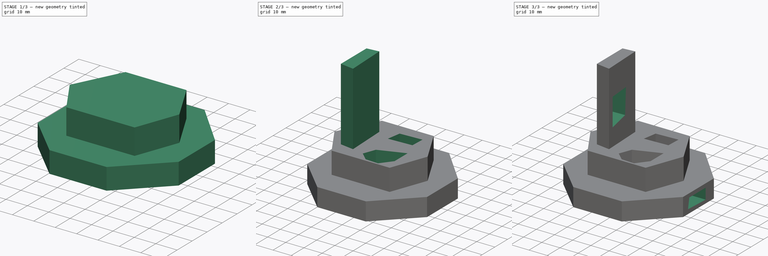
[diagram: build sequence overview — one tinted view per stage of 3, left to right]
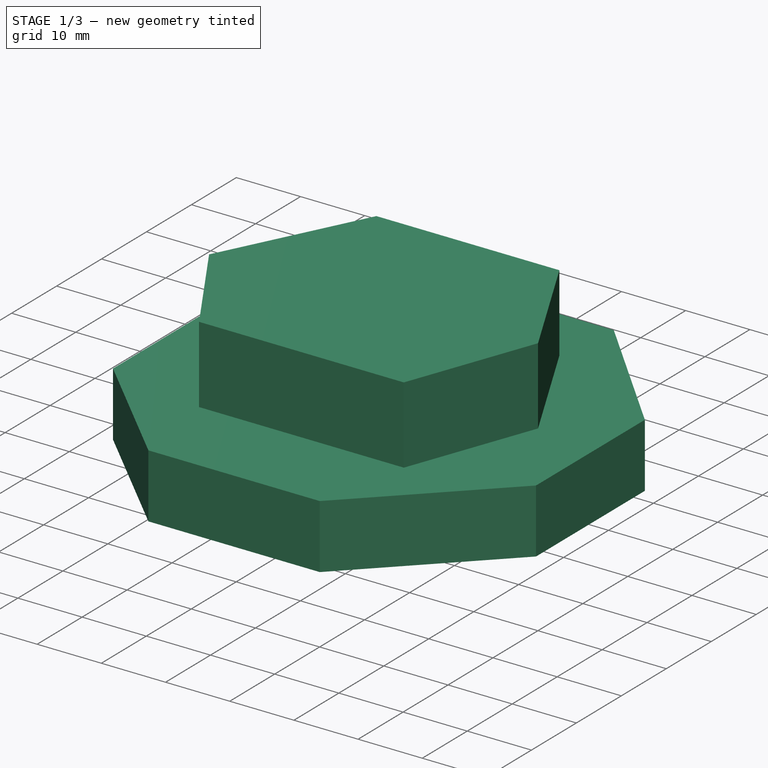
[diagram: stage 1 of 3 — iso view after this stage's code; geometry added in this stage tinted green]
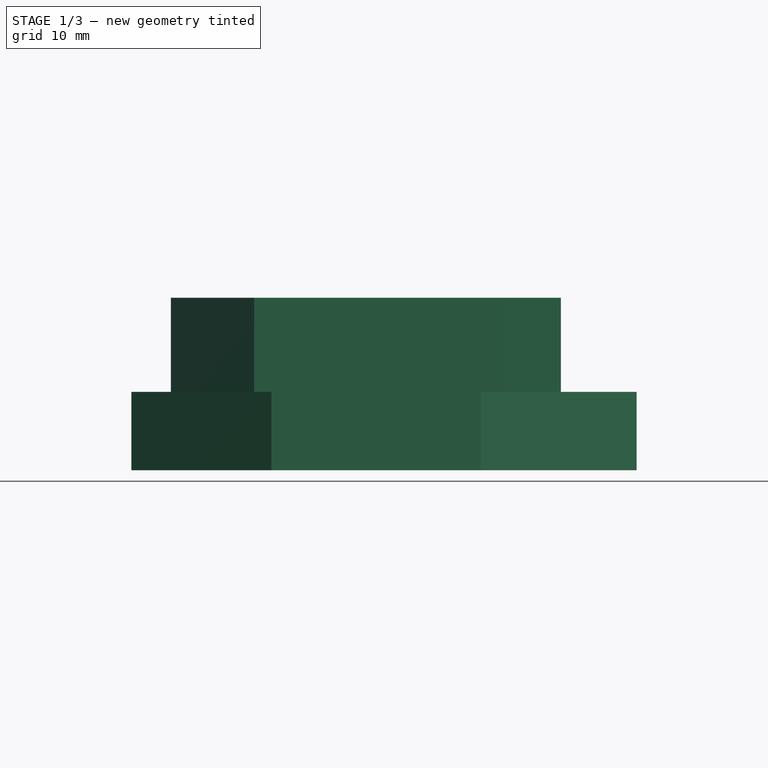
[diagram: stage 1 of 3 — front view after this stage's code; geometry added in this stage tinted green]
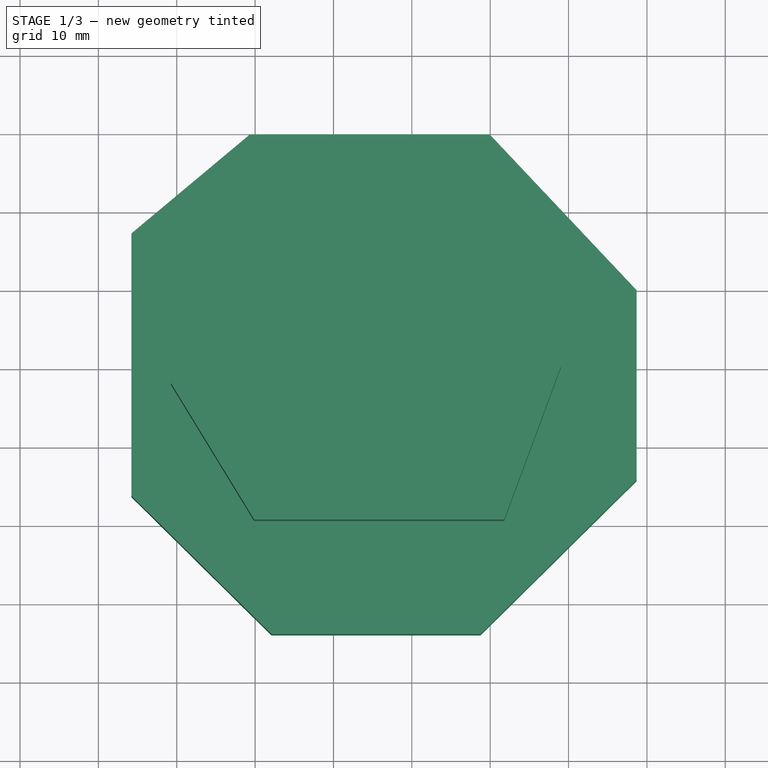
[diagram: stage 1 of 3 — top view after this stage's code; geometry added in this stage tinted green]
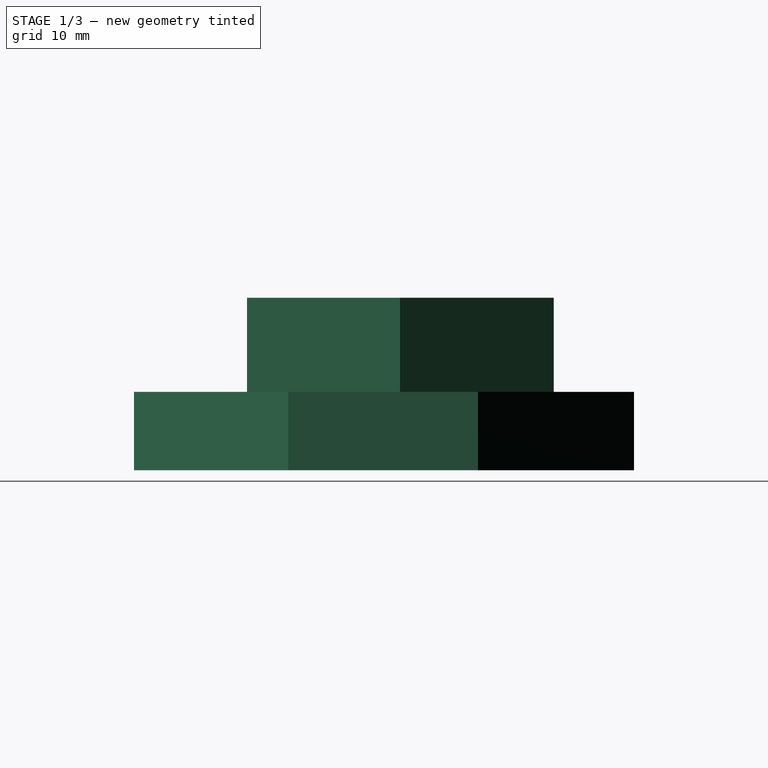
[diagram: stage 1 of 3 — right view after this stage's code; geometry added in this stage tinted green]
FCSTD DOCUMENT  (FreeCAD 0.21R33694 (Git))
Label: OJT1_T017_P01_figura_random
License: All rights reserved
LicenseURL: http://en.wikipedia.org/wiki/All_rights_reserved
objects: Sketcher::SketchObject×8, PartDesign::Pocket×4, PartDesign::Pad×3, PartDesign::Body×1
note: 23 computed .brp shape members not serialized (recipe doc carries the construction recipe); baked Part::Feature solids carry a one-line shape summary decoded from their .brp

FEATURE [Sketcher::SketchObject] Sketch
  FullyConstrained = false
  MapMode = 5
  Support = -> [XY_Plane]
  sketch-geometry (8):
    g0: LineSegment StartX=-10.6335 StartY=29.8643 StartZ=0 EndX=19.9095 EndY=29.8643 EndZ=0
    g1: LineSegment StartX=19.9095 StartY=29.8643 StartZ=0 EndX=38.6878 EndY=9.95475 EndZ=0
    g2: LineSegment StartX=38.6878 StartY=9.95475 StartZ=0 EndX=38.6878 EndY=-14.2534 EndZ=0
    g3: LineSegment StartX=38.6878 StartY=-14.2534 StartZ=0 EndX=18.7783 EndY=-33.9366 EndZ=0
    g4: LineSegment StartX=18.7783 StartY=-33.9366 StartZ=0 EndX=-7.91855 EndY=-33.9366 EndZ=0
    g5: LineSegment StartX=-7.91855 StartY=-33.9366 StartZ=0 EndX=-25.7919 EndY=-16.2896 EndZ=0
    g6: LineSegment StartX=-25.7919 StartY=-16.2896 StartZ=0 EndX=-25.7919 EndY=17.1946 EndZ=0
    g7: LineSegment StartX=-25.7919 StartY=17.1946 StartZ=0 EndX=-10.6335 EndY=29.8643 EndZ=0
  constraints (12):
    c: Horizontal(g0)
    c: Coincident(g0,g1)
    c: Coincident(g1,g2)
    c: Vertical(g2)
    c: Coincident(g2,g3)
    c: Coincident(g3,g4)
    c: Horizontal(g4)
    c: Coincident(g4,g5)
    c: Coincident(g5,g6)
    c: Vertical(g6)
    c: Coincident(g6,g7)
    c: Coincident(g7,g0)
FEATURE [PartDesign::Pad] Pad
  Direction = (0,0,1)
  Length = 10
  Length2 = 10
  Profile = -> Sketch
  ReferenceAxis = -> Sketch [N_Axis]
  Type = 0
FEATURE [Sketcher::SketchObject] Sketch002
  FullyConstrained = false
  MapMode = 5
  Placement = pos=(0,0,10) rot=(0,0,1;0rad)
  Support = -> [Pad]
  sketch-geometry (6):
    g0: LineSegment StartX=-9.89622 StartY=19.6214 StartZ=0 EndX=18.6106 EndY=19.6214 EndZ=0
    g1: LineSegment StartX=18.6106 StartY=19.6214 StartZ=0 EndX=29.0178 EndY=0 EndZ=0
    g2: LineSegment StartX=29.0178 StartY=0 StartZ=0 EndX=21.778 EndY=-19.5188 EndZ=0
    g3: LineSegment StartX=21.778 StartY=-19.5188 StartZ=0 EndX=-10.1225 EndY=-19.5188 EndZ=0
    g4: LineSegment StartX=-10.1225 StartY=-19.5188 StartZ=0 EndX=-20.7559 EndY=-2.09803 EndZ=0
    g5: LineSegment StartX=-20.7559 StartY=-2.09803 StartZ=0 EndX=-9.89622 EndY=19.6214 EndZ=0
  constraints (8):
    c: Horizontal(g0)
    c: Coincident(g0,g1)
    c: PointOnObject(g1,g-1)
    c: Coincident(g1,g2)
    c: Coincident(g2,g3)
    c: Horizontal(g3)
    c: Coincident(g3,g4)
    c: Coincident(g4,g5)
FEATURE [PartDesign::Pad] Pad001
  BaseFeature = -> Pad
  Direction = (0,0,1)
  Length = 12
  Length2 = 10
  Profile = -> Sketch002
  ReferenceAxis = -> Sketch002 [N_Axis]
  Type = 0
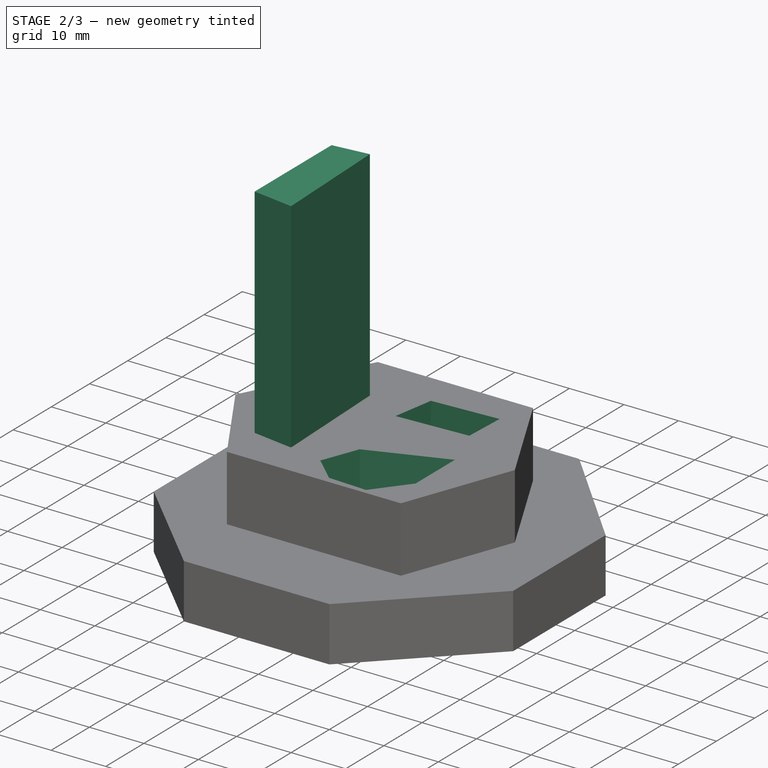
[diagram: stage 2 of 3 — iso view after this stage's code; geometry added in this stage tinted green]
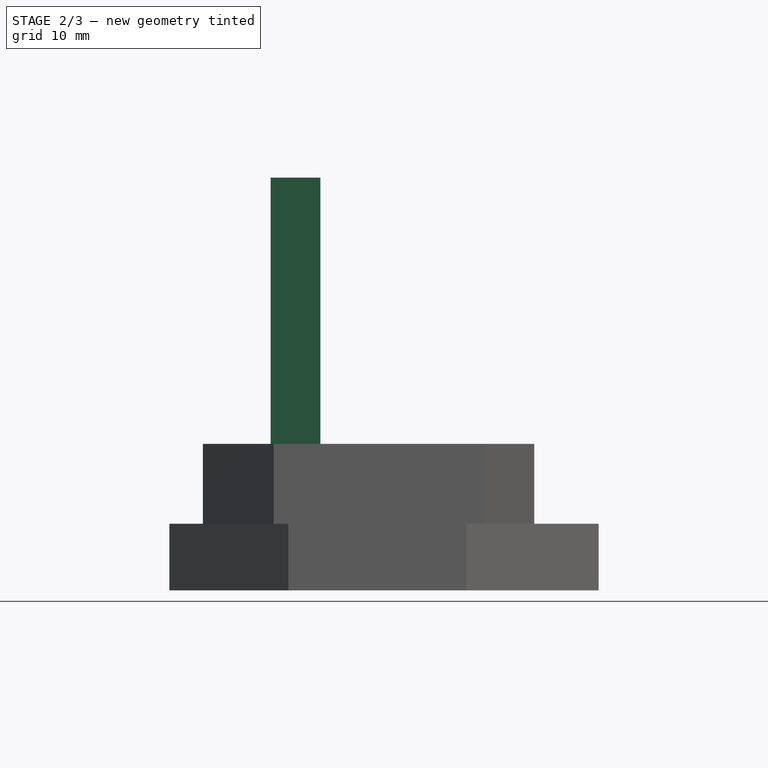
[diagram: stage 2 of 3 — front view after this stage's code; geometry added in this stage tinted green]
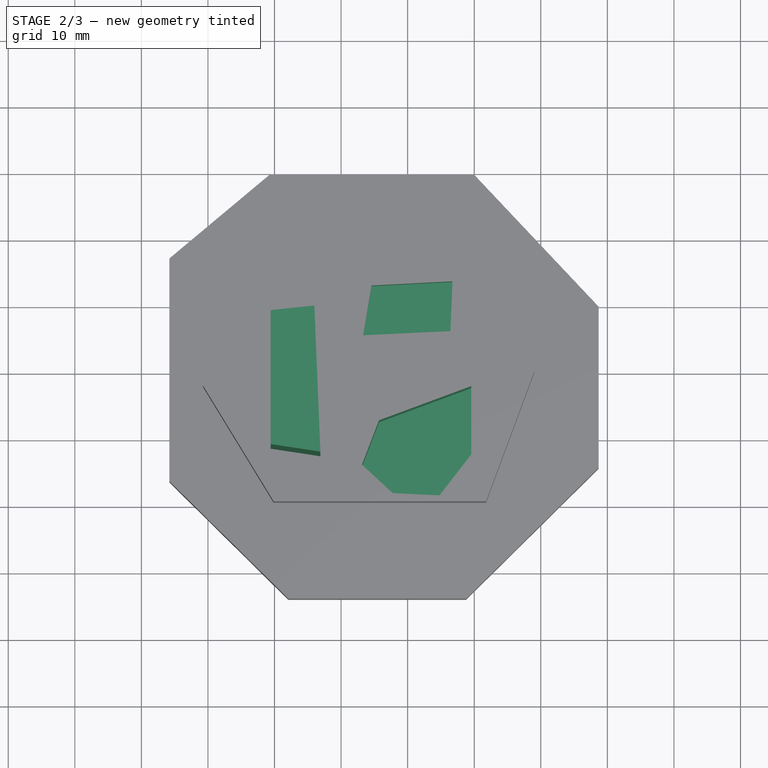
[diagram: stage 2 of 3 — top view after this stage's code; geometry added in this stage tinted green]
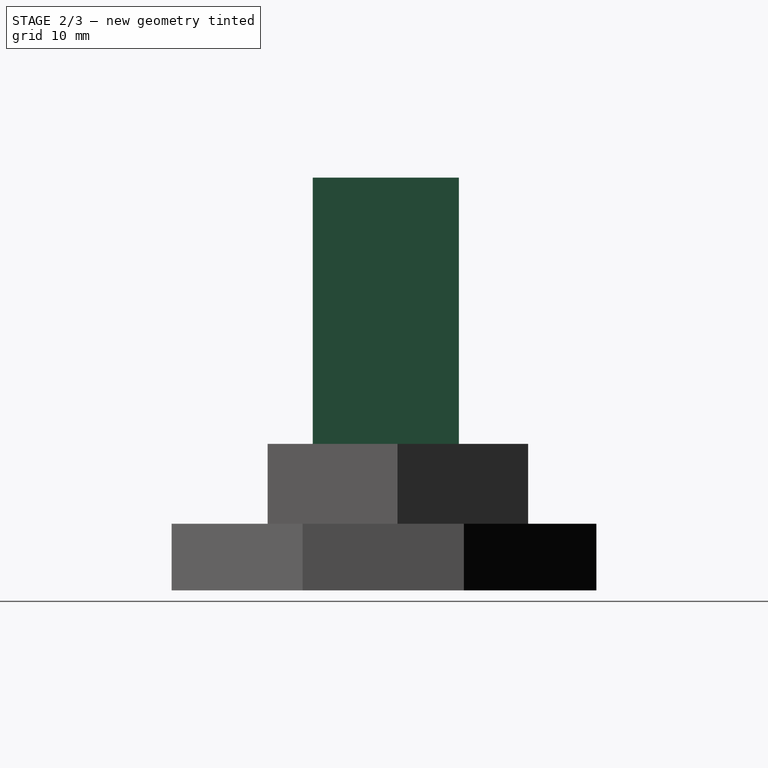
[diagram: stage 2 of 3 — right view after this stage's code; geometry added in this stage tinted green]
FEATURE [Sketcher::SketchObject] Sketch003
  FullyConstrained = false
  MapMode = 5
  Placement = pos=(0,0,22) rot=(0,0,1;0rad)
  Support = -> [Pad001]
  sketch-geometry (4):
    g0: LineSegment StartX=-10.5749 StartY=8.53545 StartZ=0 EndX=-4.01386 EndY=9.21419 EndZ=0
    g1: LineSegment StartX=-4.01386 StartY=9.21419 StartZ=0 EndX=-3.10889 EndY=-12.7315 EndZ=0
    g2: LineSegment StartX=-3.10889 StartY=-12.7315 StartZ=0 EndX=-10.5749 EndY=-11.6003 EndZ=0
    g3: LineSegment StartX=-10.5749 StartY=-11.6003 StartZ=0 EndX=-10.5749 EndY=8.53545 EndZ=0
  constraints (5):
    c: Coincident(g0,g1)
    c: Coincident(g1,g2)
    c: Coincident(g2,g3)
    c: Coincident(g3,g0)
    c: Vertical(g3)
FEATURE [PartDesign::Pad] Pad002
  BaseFeature = -> Pad001
  Direction = (0,0,1)
  Length = 40
  Length2 = 10
  Profile = -> Sketch003
  ReferenceAxis = -> Sketch003 [N_Axis]
  Type = 0
FEATURE [Sketcher::SketchObject] Sketch004
  FullyConstrained = false
  MapMode = 5
  Placement = pos=(0,0,22) rot=(0,0,1;0rad)
  Support = -> [Pad002]
  sketch-geometry (4):
    g0: LineSegment StartX=4.57853 StartY=12.9192 StartZ=0 EndX=16.7298 EndY=13.5424 EndZ=0
    g1: LineSegment StartX=16.7298 StartY=13.5424 StartZ=0 EndX=16.4183 EndY=6.06467 EndZ=0
    g2: LineSegment StartX=16.4183 StartY=6.06467 StartZ=0 EndX=3.33225 EndY=5.44152 EndZ=0
    g3: LineSegment StartX=3.33225 StartY=5.44152 StartZ=0 EndX=4.57853 EndY=12.9192 EndZ=0
  constraints (4):
    c: Coincident(g0,g1)
    c: Coincident(g1,g2)
    c: Coincident(g2,g3)
    c: Coincident(g3,g0)
FEATURE [PartDesign::Pocket] Pocket
  BaseFeature = -> Pad002
  Direction = (0,0,-1)
  Length = 6
  Length2 = 5
  Profile = -> Sketch004
  ReferenceAxis = -> Sketch004 [N_Axis]
  Type = 0
FEATURE [Sketcher::SketchObject] Sketch005
  FullyConstrained = false
  MapMode = 5
  Placement = pos=(0,0,22) rot=(0,0,1;0rad)
  Support = -> [Pocket]
  sketch-geometry (6):
    g0: LineSegment StartX=5.69986 StartY=-7.32665 StartZ=0 EndX=19.5504 EndY=-2.19683 EndZ=0
    g1: LineSegment StartX=19.5504 StartY=-2.19683 StartZ=0 EndX=19.5504 EndY=-12.4565 EndZ=0
    g2: LineSegment StartX=19.5504 StartY=-12.4565 StartZ=0 EndX=14.7626 EndY=-18.6123 EndZ=0
    g3: LineSegment StartX=14.7626 StartY=-18.6123 StartZ=0 EndX=7.7518 EndY=-18.2703 EndZ=0
    g4: LineSegment StartX=7.7518 StartY=-18.2703 StartZ=0 EndX=3.13495 EndY=-13.9954 EndZ=0
    g5: LineSegment StartX=3.13495 StartY=-13.9954 StartZ=0 EndX=5.69986 EndY=-7.32665 EndZ=0
  constraints (7):
    c: Coincident(g0,g1)
    c: Vertical(g1)
    c: Coincident(g1,g2)
    c: Coincident(g2,g3)
    c: Coincident(g3,g4)
    c: Coincident(g4,g5)
    c: Coincident(g5,g0)
FEATURE [PartDesign::Pocket] Pocket001
  BaseFeature = -> Pocket
  Direction = (0,0,-1)
  Length = 18
  Length2 = 5
  Profile = -> Sketch005
  ReferenceAxis = -> Sketch005 [N_Axis]
  Type = 0
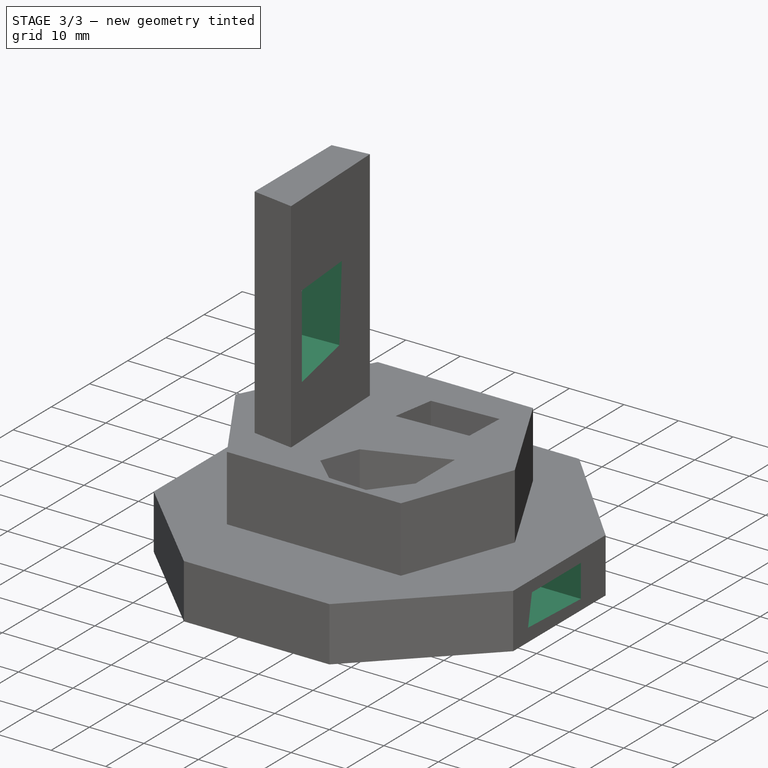
[diagram: stage 3 of 3 — iso view after this stage's code; geometry added in this stage tinted green]
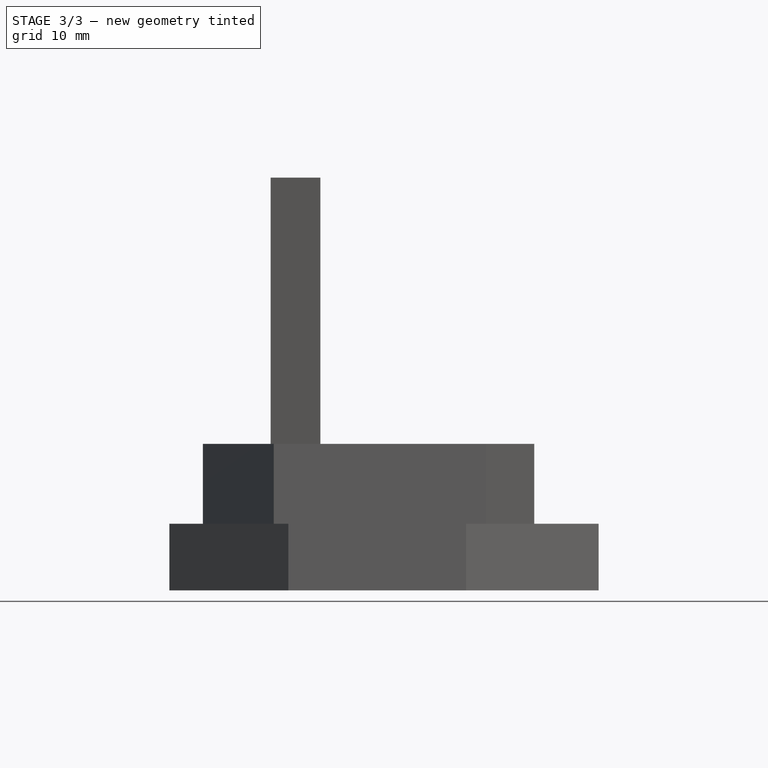
[diagram: stage 3 of 3 — front view after this stage's code; geometry added in this stage tinted green]
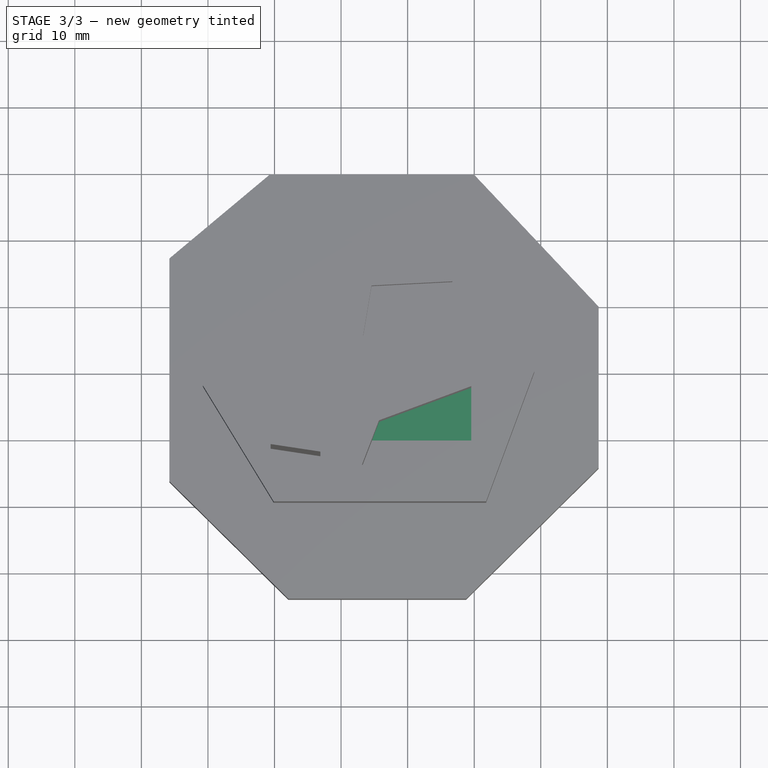
[diagram: stage 3 of 3 — top view after this stage's code; geometry added in this stage tinted green]
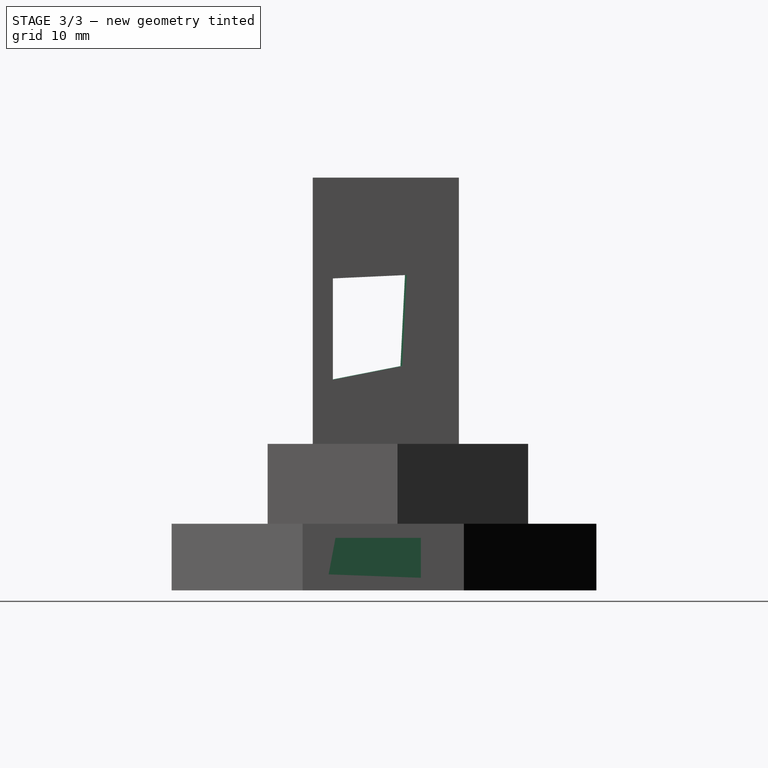
[diagram: stage 3 of 3 — right view after this stage's code; geometry added in this stage tinted green]
FEATURE [Sketcher::SketchObject] Sketch006
  FullyConstrained = false
  MapMode = 5
  Placement = pos=(-3.62773,-0.149597,0) rot=(0.561489,0.58512,0.58512;2.11835rad)
  Support = -> [Pocket001]
  sketch-geometry (4):
    g0: LineSegment StartX=-9.56572 StartY=46.862 StartZ=0 EndX=1.5489 EndY=47.375 EndZ=0
    g1: LineSegment StartX=1.5489 StartY=47.375 StartZ=0 EndX=0.864925 EndY=33.6955 EndZ=0
    g2: LineSegment StartX=0.864925 StartY=33.6955 StartZ=0 EndX=-9.56572 EndY=31.6435 EndZ=0
    g3: LineSegment StartX=-9.56572 StartY=31.6435 StartZ=0 EndX=-9.56572 EndY=46.862 EndZ=0
  constraints (5):
    c: Coincident(g0,g1)
    c: Coincident(g1,g2)
    c: Coincident(g2,g3)
    c: Coincident(g3,g0)
    c: Vertical(g3)
FEATURE [PartDesign::Pocket] Pocket002
  BaseFeature = -> Pocket001
  Direction = (-0.999151,-0.0412021,-1e-16)
  Length = 9
  Length2 = 5
  Profile = -> Sketch006
  ReferenceAxis = -> Sketch006 [N_Axis]
  Type = 0
FEATURE [Sketcher::SketchObject] Sketch007
  FullyConstrained = true
  MapMode = 5
  Placement = pos=(38.6878,0,0) rot=(0.57735,0.57735,0.57735;2.0944rad)
  Support = -> [Pocket002]
FEATURE [Sketcher::SketchObject] Sketch008
  FullyConstrained = false
  MapMode = 5
  Placement = pos=(38.6878,0,0) rot=(0.57735,0.57735,0.57735;2.0944rad)
  Support = -> [Pocket002]
  sketch-geometry (4):
    g0: LineSegment StartX=-9.32673 StartY=7.87617 StartZ=0 EndX=3.49783 EndY=7.87617 EndZ=0
    g1: LineSegment StartX=3.49783 StartY=7.87617 StartZ=0 EndX=3.49783 EndY=1.89138 EndZ=0
    g2: LineSegment StartX=3.49783 StartY=1.89138 StartZ=0 EndX=-10.3527 EndY=2.40436 EndZ=0
    g3: LineSegment StartX=-10.3527 StartY=2.40436 StartZ=0 EndX=-9.32673 EndY=7.87617 EndZ=0
  constraints (6):
    c: Horizontal(g0)
    c: Coincident(g0,g1)
    c: Vertical(g1)
    c: Coincident(g1,g2)
    c: Coincident(g2,g3)
    c: Coincident(g3,g0)
FEATURE [PartDesign::Pocket] Pocket003
  BaseFeature = -> Pocket002
  Direction = (-1,0,0)
  Length = 40
  Length2 = 5
  Profile = -> Sketch008
  ReferenceAxis = -> Sketch008 [N_Axis]
  Type = 0
FEATURE [PartDesign::Body] Body
  Group = -> [Sketch,Pad,Sketch002,Pad001,Sketch003,Pad002,Sketch004,Pocket,Sketch005,Pocket001,Sketch006,Pocket002,Sketch007,Sketch008,Pocket003]
  Origin = -> Origin
  Tip = -> Pocket003
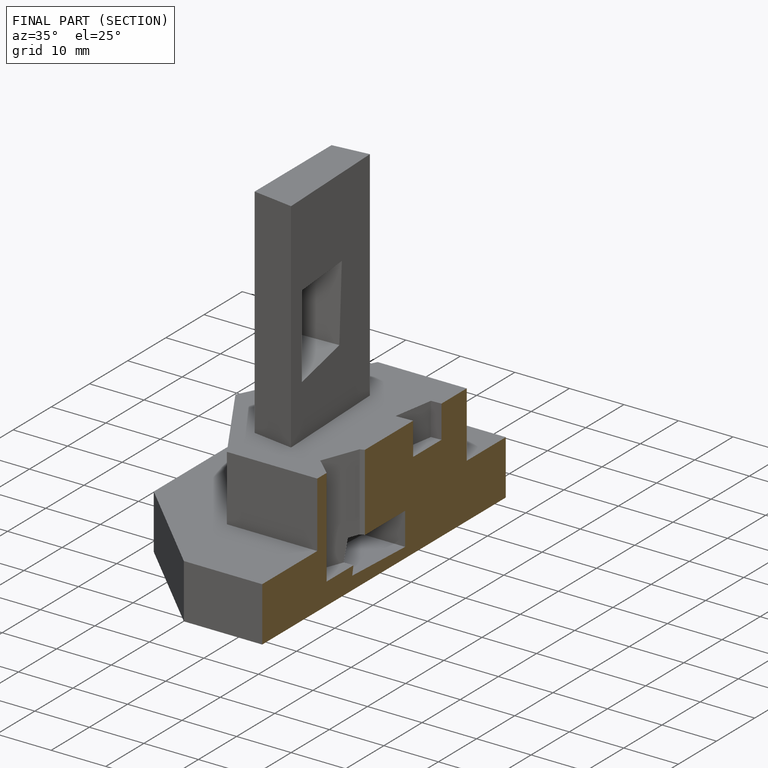
[diagram: finished part — half-section view (interior)]
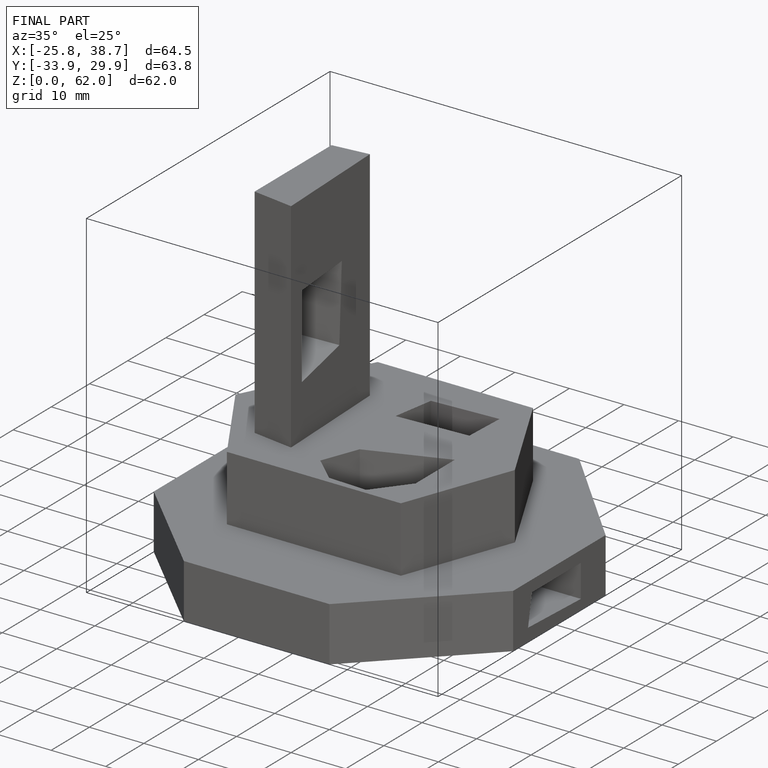
[diagram: finished part — iso view with bounding-box wireframe]
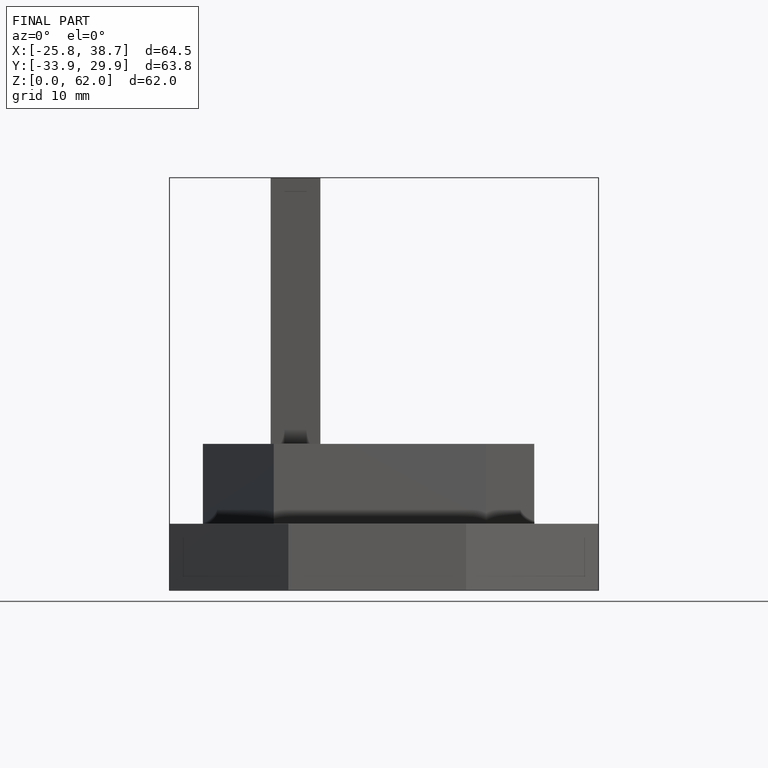
[diagram: finished part — front view with bounding-box wireframe]
